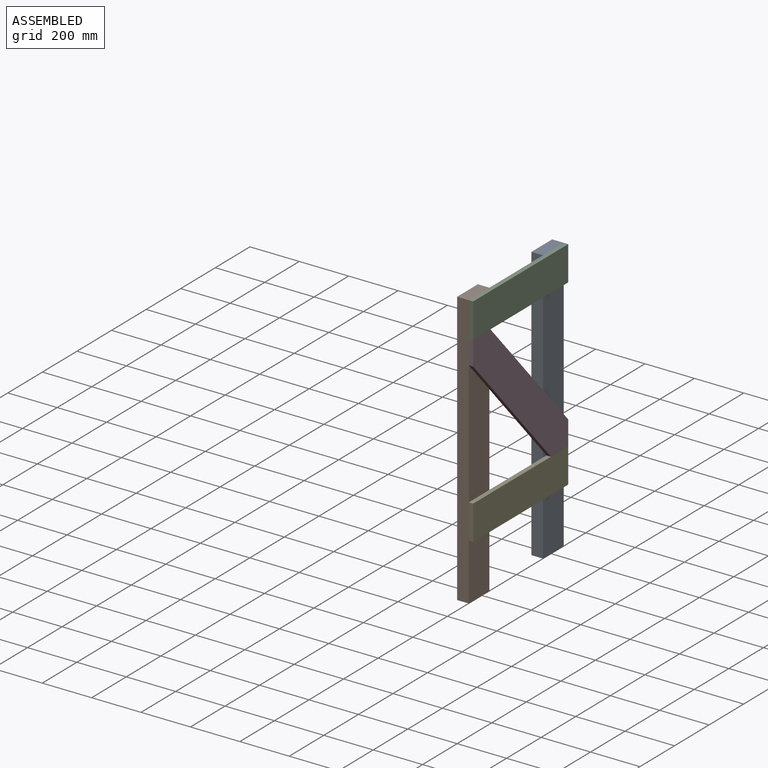
[diagram: assembled view]
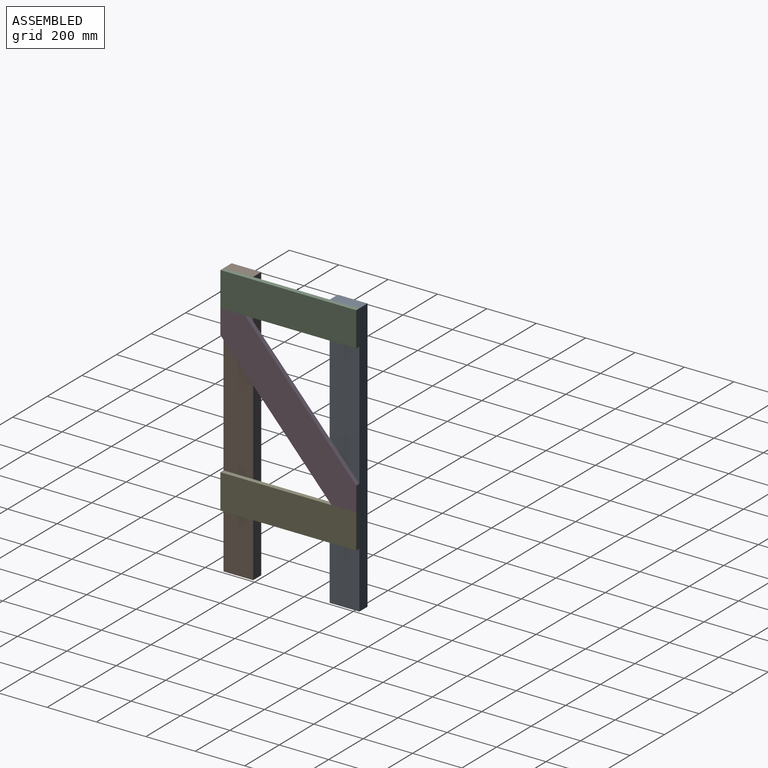
[diagram: assembled view, second angle]
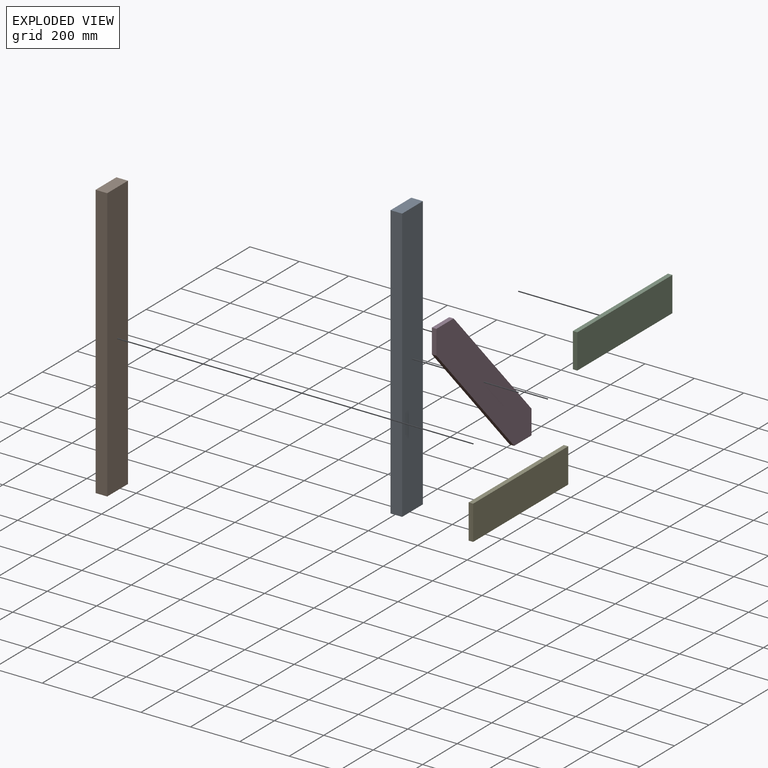
[diagram: exploded view]
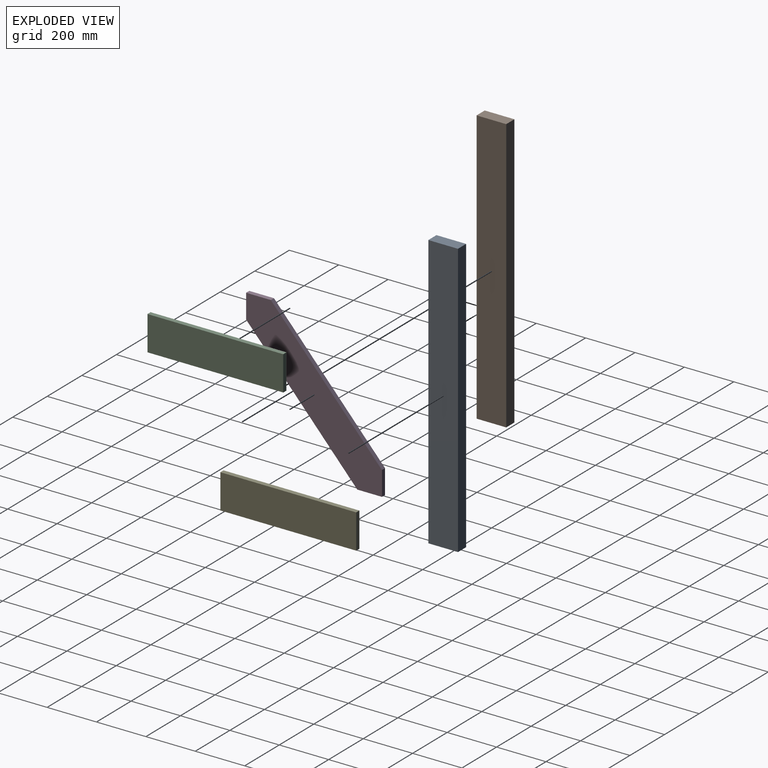
[diagram: exploded view, second angle]
ASSEMBLY  parts=5 mates=4
PART A: 6 faces, bbox 47x120x1110 mm
  f0: plane 1110x120mm, normal (-1,0,0), area 133200mm2, adj f1,f3,f4,f5
  f1: plane 1110x47mm, normal (0,-1,0), area 52170mm2, adj f0,f2,f4,f5
  f2: plane 1110x120mm, normal (1,0,0), area 133200mm2, adj f1,f3,f4,f5
  f3: plane 1110x47mm, normal (0,1,0), area 52170mm2, adj f0,f2,f4,f5
  f4: plane 120x47mm, normal (0,0,1), area 5640mm2, adj f0,f1,f2,f3
  f5: plane 120x47mm, normal (0,0,-1), area 5640mm2, adj f0,f1,f2,f3
PART B: 6 faces, bbox 47x120x1110 mm
  f0: plane 1110x120mm, normal (-1,0,0), area 133200mm2, adj f1,f3,f4,f5
  f1: plane 1110x47mm, normal (0,-1,0), area 52170mm2, adj f0,f2,f4,f5
  f2: plane 1110x120mm, normal (1,0,0), area 133200mm2, adj f1,f3,f4,f5
  f3: plane 1110x47mm, normal (0,1,0), area 52170mm2, adj f0,f2,f4,f5
  f4: plane 120x47mm, normal (0,0,1), area 5640mm2, adj f0,f1,f2,f3
  f5: plane 120x47mm, normal (0,0,-1), area 5640mm2, adj f0,f1,f2,f3
PART C: 6 faces, bbox 18x550x140 mm
  f0: plane 550x18mm, normal (0,0,-1), area 9900mm2, adj f1,f3,f4,f5
  f1: plane 140x18mm, normal (0,1,0), area 2520mm2, adj f0,f2,f4,f5
  f2: plane 550x18mm, normal (0,0,1), area 9900mm2, adj f1,f3,f4,f5
  f3: plane 140x18mm, normal (0,-1,0), area 2520mm2, adj f0,f2,f4,f5
  f4: plane 550x140mm, normal (1,0,0), area 77000mm2, adj f0,f1,f2,f3
  f5: plane 550x140mm, normal (-1,0,0), area 77000mm2, adj f0,f1,f2,f3
PART D: 8 faces, bbox 18x550x600 mm
  f0: plane 501.82x450mm, normal (0,-0.74,-0.67), area 12132.6mm2, adj f1,f5,f6,f7
  f1: plane 100x18mm, normal (0,0,-1), area 1800mm2, adj f0,f2,f6,f7
  f2: plane 98.18x18mm, normal (0,1,0), area 1767.3mm2, adj f1,f3,f6,f7
  f3: plane 501.82x450mm, normal (0,0.74,0.67), area 12132.6mm2, adj f2,f4,f6,f7
  f4: plane 100x18mm, normal (0,0,1), area 1800mm2, adj f3,f5,f6,f7
  f5: plane 98.18x18mm, normal (0,-1,0), area 1767.3mm2, adj f0,f4,f6,f7
  f6: plane 600x550mm, normal (1,0,0), area 104182.9mm2, adj f0,f1,f2,f3,f4,f5
  f7: plane 600x550mm, normal (-1,0,0), area 104182.9mm2, adj f0,f1,f2,f3,f4,f5
PART E: 6 faces, bbox 18x550x140 mm
  f0: plane 140x18mm, normal (0,1,0), area 2520mm2, adj f1,f3,f4,f5
  f1: plane 550x18mm, normal (0,0,1), area 9900mm2, adj f0,f2,f4,f5
  f2: plane 140x18mm, normal (0,-1,0), area 2520mm2, adj f1,f3,f4,f5
  f3: plane 550x18mm, normal (0,0,-1), area 9900mm2, adj f0,f2,f4,f5
  f4: plane 550x140mm, normal (1,0,0), area 77000mm2, adj f0,f1,f2,f3
  f5: plane 550x140mm, normal (-1,0,0), area 77000mm2, adj f0,f1,f2,f3
PLACE A t=(-223.77,90.45,156.32)mm
PLACE B t=(-223.77,90.45,156.32)mm
PLACE C t=(-223.77,90.45,156.32)mm
PLACE D t=(-223.77,90.45,156.32)mm
PLACE E t=(-223.77,90.45,156.32)mm
MATE fastened B.f2 <-> C.f5  axis (1,0,0) through (-176.77,90.45,1266.32)mm
MATE fastened C.f4 <-> D.f6  axis (1,0,0) through (-158.77,90.45,1126.32)mm
MATE fastened C.f5 <-> A.f2  axis (-1,0,0) through (-176.77,640.45,1266.32)mm
MATE fastened E.f4 <-> D.f6  axis (1,0,0) through (-158.77,640.45,526.32)mm
